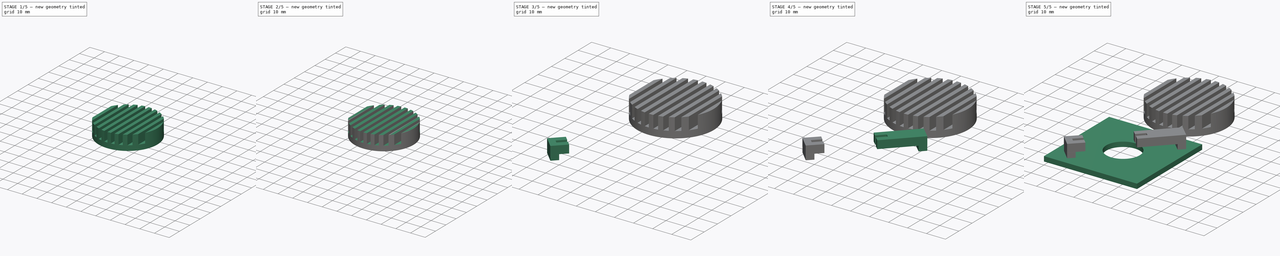
[diagram: build sequence overview — one tinted view per stage of 5, left to right]
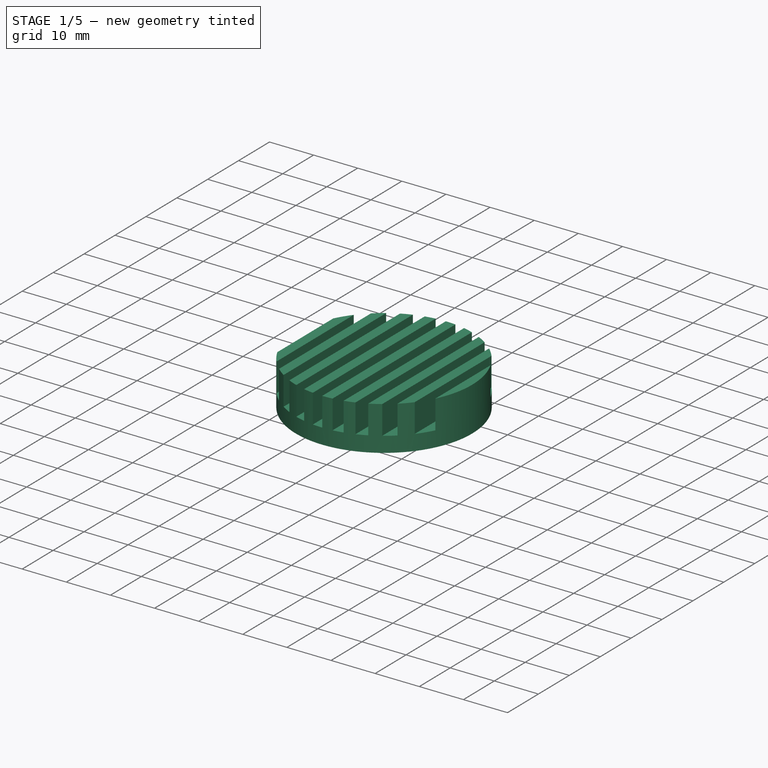
[diagram: stage 1 of 5 — iso view after this stage's code; geometry added in this stage tinted green]
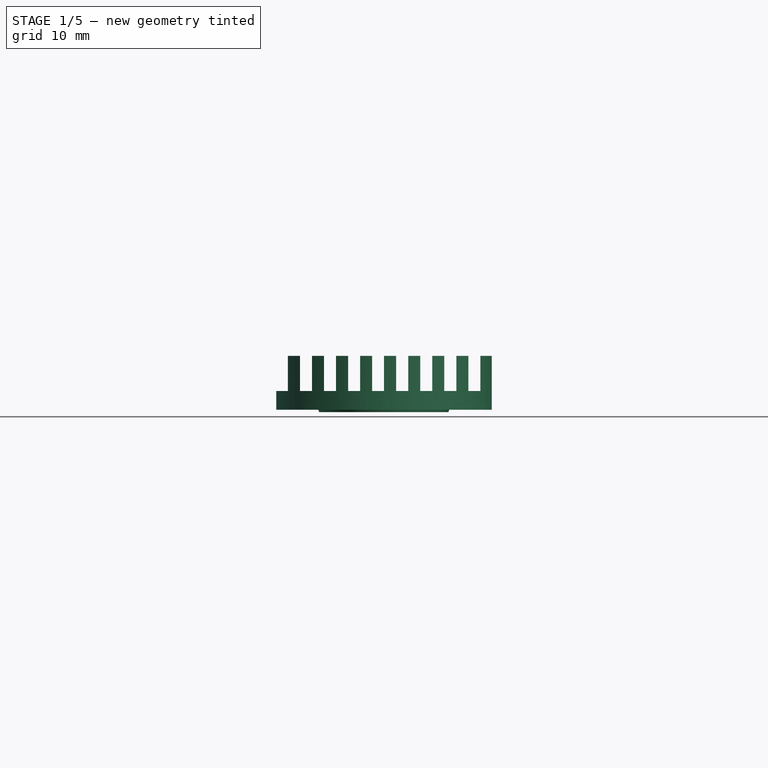
[diagram: stage 1 of 5 — front view after this stage's code; geometry added in this stage tinted green]
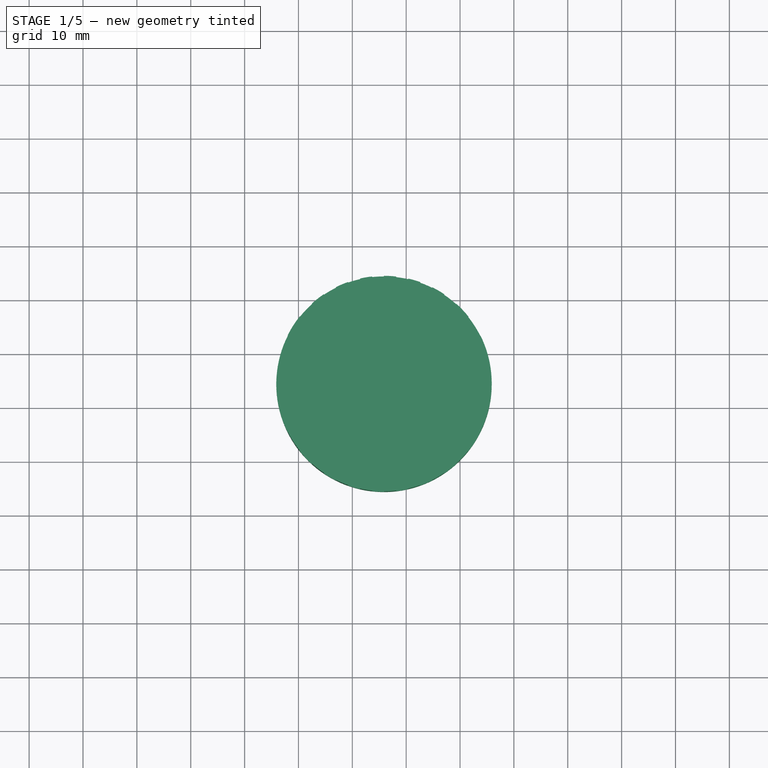
[diagram: stage 1 of 5 — top view after this stage's code; geometry added in this stage tinted green]
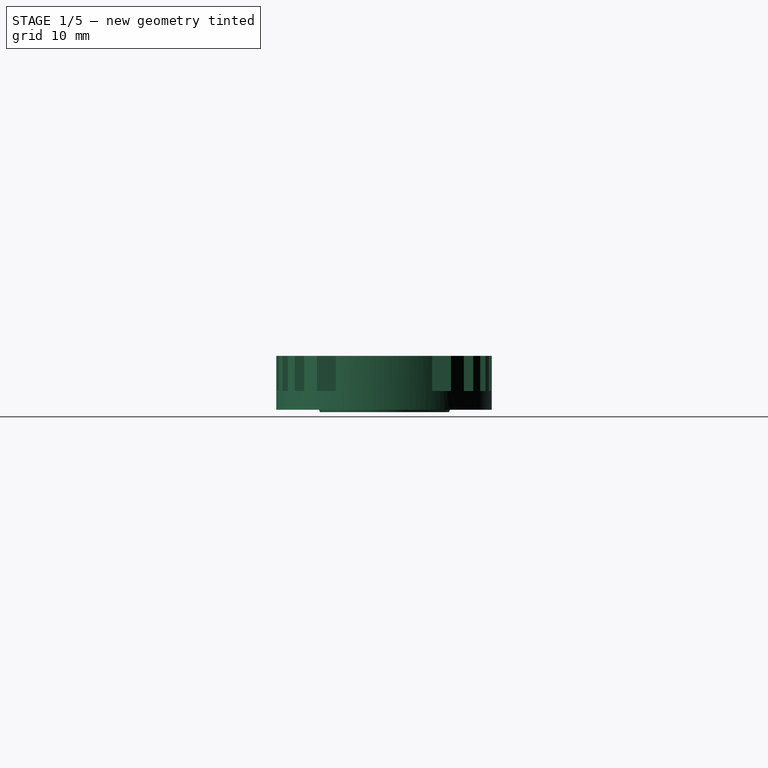
[diagram: stage 1 of 5 — right view after this stage's code; geometry added in this stage tinted green]
FCSTD DOCUMENT  (FreeCAD 0.21R33694 (Git))
Label: new_wall_maze_v4
License: All rights reserved
LicenseURL: https://en.wikipedia.org/wiki/All_rights_reserved
objects: Part::Cut×7, Sketcher::SketchObject×6, Part::Extrusion×6, Part::Box×5, Part::MultiFuse×3, Part::Cylinder×2
note: 29 computed .brp shape members not serialized (recipe doc carries the construction recipe); baked Part::Feature solids carry a one-line shape summary decoded from their .brp

FEATURE [Part::Cylinder] Cylinder001
  Angle = 360
  AttacherType = Attacher::AttachEngine3D
  FirstAngle = 0
  Height = 10
  Placement = pos=(25.8813,-24.4337,1.57777) rot=(0,0,1;0rad)
  Radius = 20
  SecondAngle = 0
FEATURE [Sketcher::SketchObject] Sketch001
  FullyConstrained = false
  MapMode = 2
  Placement = pos=(25.8813,-24.4337,1.57777) rot=(0,0,1;0rad)
  Support = -> [Cylinder001]
  sketch-geometry (36):
    g0: LineSegment StartX=2.26266 StartY=-19.954 StartZ=0 EndX=4.49615 EndY=-19.954 EndZ=0
    g1: LineSegment StartX=4.49615 StartY=-19.954 StartZ=0 EndX=4.49615 EndY=19.9697 EndZ=0
    g2: LineSegment StartX=4.49615 StartY=19.9697 StartZ=0 EndX=2.26266 EndY=19.9697 EndZ=0
    g3: LineSegment StartX=2.26266 StartY=19.9697 StartZ=0 EndX=2.26266 EndY=-19.954 EndZ=0
    g4: LineSegment StartX=6.72964 StartY=-19.954 StartZ=0 EndX=8.96313 EndY=-19.954 EndZ=0
    g5: LineSegment StartX=8.96313 StartY=-19.954 StartZ=0 EndX=8.96313 EndY=19.9697 EndZ=0
    g6: LineSegment StartX=8.96313 StartY=19.9697 StartZ=0 EndX=6.72964 EndY=19.9697 EndZ=0
    g7: LineSegment StartX=6.72964 StartY=19.9697 StartZ=0 EndX=6.72964 EndY=-19.954 EndZ=0
    g8: LineSegment StartX=11.1966 StartY=-19.954 StartZ=0 EndX=13.4301 EndY=-19.954 EndZ=0
    g9: LineSegment StartX=13.4301 StartY=-19.954 StartZ=0 EndX=13.4301 EndY=20.0627 EndZ=0
    g10: LineSegment StartX=13.4301 StartY=20.0627 StartZ=0 EndX=11.1966 EndY=20.0627 EndZ=0
    g11: LineSegment StartX=11.1966 StartY=20.0627 StartZ=0 EndX=11.1966 EndY=-19.954 EndZ=0
    g12: LineSegment StartX=15.6636 StartY=-19.954 StartZ=0 EndX=17.8971 EndY=-19.954 EndZ=0
    g13: LineSegment StartX=17.8971 StartY=-19.954 StartZ=0 EndX=17.8971 EndY=20.0627 EndZ=0
    g14: LineSegment StartX=17.8971 StartY=20.0627 StartZ=0 EndX=15.6636 EndY=20.0627 EndZ=0
    g15: LineSegment StartX=15.6636 StartY=20.0627 StartZ=0 EndX=15.6636 EndY=-19.954 EndZ=0
    g16: LineSegment StartX=0 StartY=-20.6888 StartZ=0 EndX=-2.20433 EndY=-20.6888 EndZ=0
    g17: LineSegment StartX=-2.20433 StartY=-20.6888 StartZ=0 EndX=-2.20433 EndY=20.1558 EndZ=0
    g18: LineSegment StartX=-2.20433 StartY=20.1558 StartZ=0 EndX=0 EndY=20.1558 EndZ=0
    g19: LineSegment StartX=0 StartY=20.1558 StartZ=0 EndX=0 EndY=-20.6888 EndZ=0
    g20: LineSegment StartX=-4.43782 StartY=-19.954 StartZ=0 EndX=-6.67131 EndY=-19.954 EndZ=0
    g21: LineSegment StartX=-6.67131 StartY=-19.954 StartZ=0 EndX=-6.67131 EndY=20.1558 EndZ=0
    g22: LineSegment StartX=-6.67131 StartY=20.1558 StartZ=0 EndX=-4.43782 EndY=20.1558 EndZ=0
    g23: LineSegment StartX=-4.43782 StartY=20.1558 StartZ=0 EndX=-4.43782 EndY=-19.954 EndZ=0
    g24: LineSegment StartX=-8.9048 StartY=-19.954 StartZ=0 EndX=-11.1383 EndY=-19.954 EndZ=0
    g25: LineSegment StartX=-11.1383 StartY=-19.954 StartZ=0 EndX=-11.1383 EndY=20.0627 EndZ=0
    g26: LineSegment StartX=-11.1383 StartY=20.0627 StartZ=0 EndX=-8.9048 EndY=20.0627 EndZ=0
    g27: LineSegment StartX=-8.9048 StartY=20.0627 StartZ=0 EndX=-8.9048 EndY=-19.954 EndZ=0
    g28: LineSegment StartX=-13.3718 StartY=-19.954 StartZ=0 EndX=-15.6053 EndY=-19.954 EndZ=0
    g29: LineSegment StartX=-15.6053 StartY=-19.954 StartZ=0 EndX=-15.6053 EndY=20.0627 EndZ=0
    g30: LineSegment StartX=-15.6053 StartY=20.0627 StartZ=0 EndX=-13.3718 EndY=20.0627 EndZ=0
    g31: LineSegment StartX=-13.3718 StartY=20.0627 StartZ=0 EndX=-13.3718 EndY=-19.954 EndZ=0
    g32: LineSegment StartX=-17.8388 StartY=-19.954 StartZ=0 EndX=-20.0723 EndY=-19.954 EndZ=0
    g33: LineSegment StartX=-20.0723 StartY=-19.954 StartZ=0 EndX=-20.0723 EndY=20.1558 EndZ=0
    g34: LineSegment StartX=-20.0723 StartY=20.1558 StartZ=0 EndX=-17.8388 EndY=20.1558 EndZ=0
    g35: LineSegment StartX=-17.8388 StartY=20.1558 StartZ=0 EndX=-17.8388 EndY=-19.954 EndZ=0
  constraints (73):
    c: PointOnObject(g16,g-2)
    c: Coincident(g0,g1)
    c: Coincident(g1,g2)
    c: Coincident(g2,g3)
    c: Coincident(g3,g0)
    c: Horizontal(g0)
    c: Horizontal(g2)
    c: Vertical(g1)
    c: Vertical(g3)
    c: Coincident(g4,g5)
    c: Coincident(g5,g6)
    c: Coincident(g6,g7)
    c: Coincident(g7,g4)
    c: Horizontal(g4)
    c: Horizontal(g6)
    c: Vertical(g5)
    c: Vertical(g7)
    c: Coincident(g8,g9)
    c: Coincident(g9,g10)
    c: Coincident(g10,g11)
    c: Coincident(g11,g8)
    c: Horizontal(g8)
    c: Horizontal(g10)
    c: Vertical(g9)
    c: Vertical(g11)
    c: Coincident(g12,g13)
    c: Coincident(g13,g14)
    c: Coincident(g14,g15)
    c: Coincident(g15,g12)
    c: Horizontal(g12)
    c: Horizontal(g14)
    c: Vertical(g13)
    c: Vertical(g15)
    c: Coincident(g16,g17)
    c: Coincident(g17,g18)
    c: Coincident(g18,g19)
    c: Coincident(g19,g16)
    c: Horizontal(g16)
    c: Horizontal(g18)
    c: Vertical(g17)
    c: Vertical(g19)
    c: Coincident(g20,g21)
    c: Coincident(g21,g22)
    c: Coincident(g22,g23)
    c: Coincident(g23,g20)
    c: Horizontal(g20)
    c: Horizontal(g22)
    c: Vertical(g21)
    c: Vertical(g23)
    c: Coincident(g24,g25)
    c: Coincident(g25,g26)
    c: Coincident(g26,g27)
    c: Coincident(g27,g24)
    c: Horizontal(g24)
    c: Horizontal(g26)
    c: Vertical(g25)
    c: Vertical(g27)
    c: Coincident(g28,g29)
    c: Coincident(g29,g30)
    c: Coincident(g30,g31)
    c: Coincident(g31,g28)
    c: Horizontal(g28)
    c: Horizontal(g30)
    c: Vertical(g29)
    c: Vertical(g31)
    c: Coincident(g32,g33)
    c: Coincident(g33,g34)
    c: Coincident(g34,g35)
    c: Coincident(g35,g32)
    c: Horizontal(g32)
    c: Horizontal(g34)
    c: Vertical(g33)
    c: Vertical(g35)
FEATURE [Part::Extrusion] Extrude
  Base = -> Sketch001
  Dir = (0,0,1)
  DirMode = 2
  FaceMakerClass = Part::FaceMakerBullseye
  LengthFwd = 6.5
  LengthRev = 0
  Solid = true
  Symmetric = false
FEATURE [Part::Cut] Cut001
  Base = -> Cylinder001
  Placement = pos=(0,50,12) rot=(1,0,0;3.14159rad)
  Tool = -> Extrude
FEATURE [Sketcher::SketchObject] Sketch002
  FullyConstrained = false
  sketch-geometry (1):
    g0: Circle CenterX=25.8418 CenterY=74.5246 CenterZ=0 NormalX=0 NormalY=0 NormalZ=1 AngleXU=0 Radius=12
  constraints (1):
    c: Radius(g0) = 12
FEATURE [Part::Extrusion] Extrude001
  Base = -> Sketch002
  Dir = (0,0,1)
  DirMode = 2
  FaceMakerClass = Part::FaceMakerBullseye
  LengthFwd = 2
  LengthRev = 0
  Solid = true
  Symmetric = false
  TaperAngle = 19
FEATURE [Sketcher::SketchObject] Sketch
  FullyConstrained = false
  sketch-geometry (1):
    g0: Circle CenterX=25.5936 CenterY=74.5909 CenterZ=0 NormalX=0 NormalY=0 NormalZ=1 AngleXU=0 Radius=2.50188
FEATURE [Part::Extrusion] Extrude004
  Base = -> Sketch
  Dir = (0,0,1)
  DirMode = 2
  FaceMakerClass = Part::FaceMakerBullseye
  LengthFwd = 0.5
  LengthRev = 0
  Placement = pos=(0,0,1.5) rot=(0,0,1;0rad)
  Solid = true
  Symmetric = false
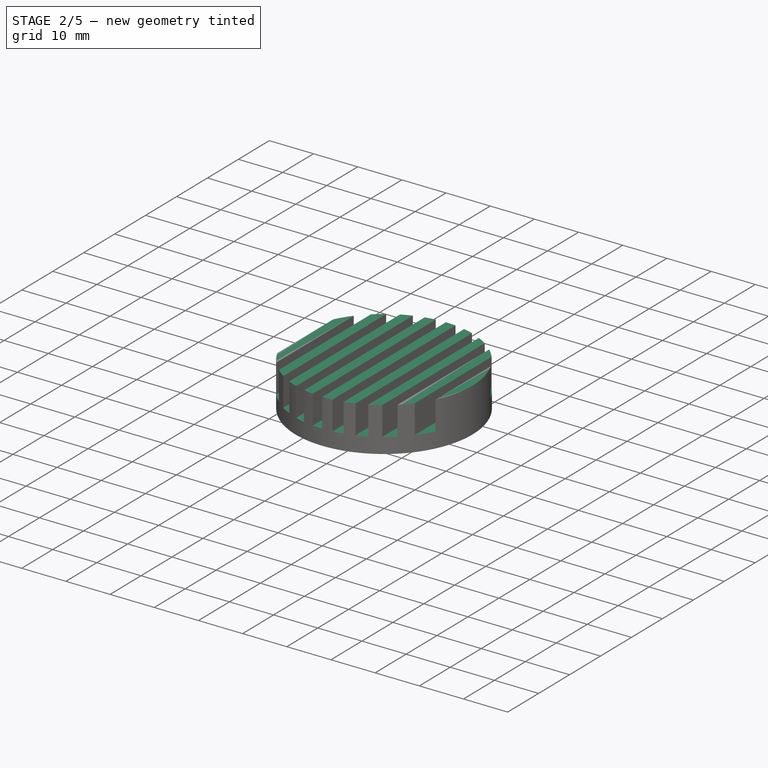
[diagram: stage 2 of 5 — iso view after this stage's code; geometry added in this stage tinted green]
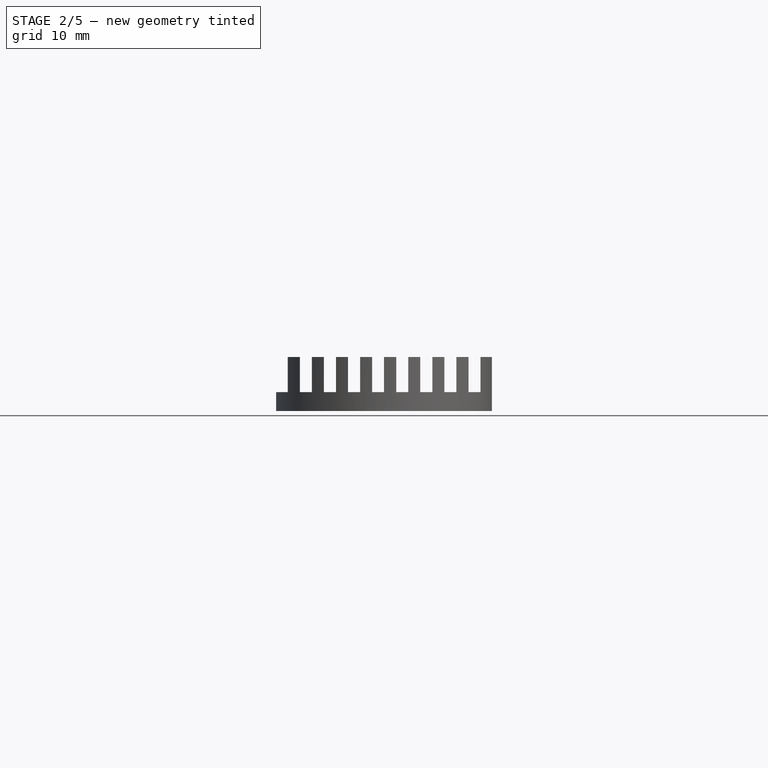
[diagram: stage 2 of 5 — front view after this stage's code; geometry added in this stage tinted green]
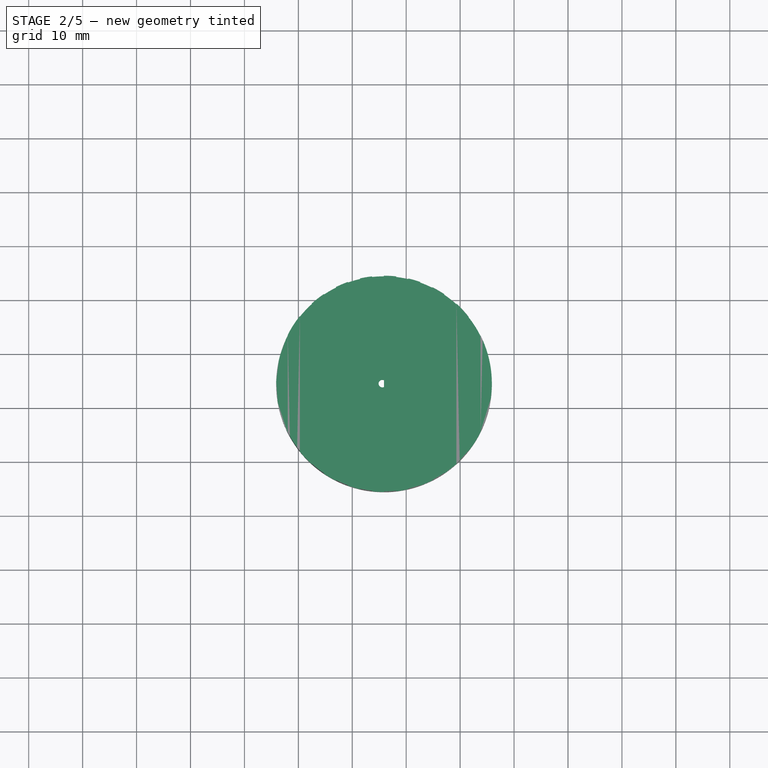
[diagram: stage 2 of 5 — top view after this stage's code; geometry added in this stage tinted green]
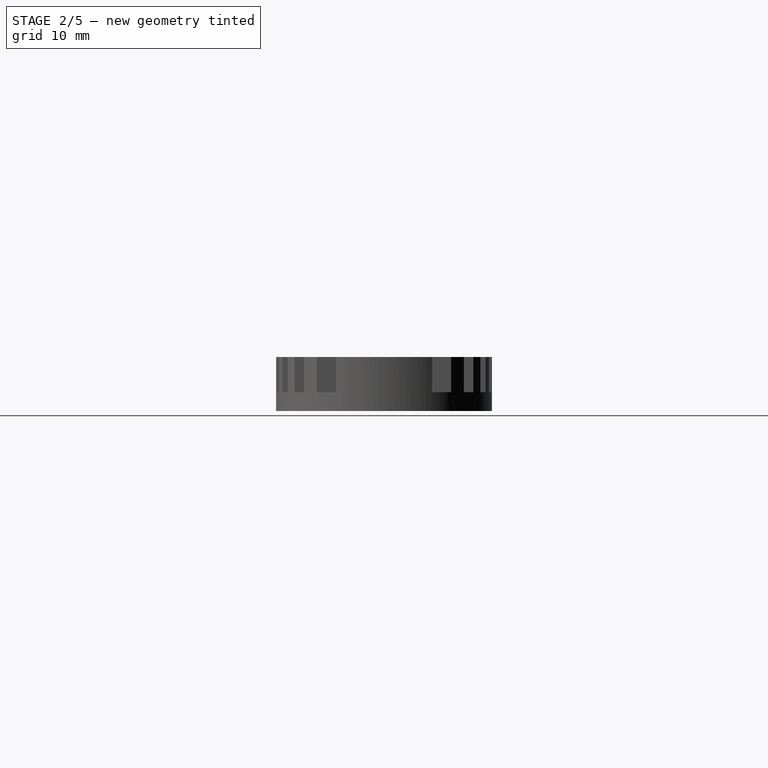
[diagram: stage 2 of 5 — right view after this stage's code; geometry added in this stage tinted green]
FEATURE [Part::Cut] Cut002
  Base = -> Cut001
  Placement = pos=(0,0,-0.5) rot=(0,0,1;0rad)
  Tool = -> Extrude001
FEATURE [Sketcher::SketchObject] Sketch007
  FullyConstrained = false
  sketch-geometry (1):
    g0: Circle CenterX=25.575 CenterY=74.5361 CenterZ=0 NormalX=0 NormalY=0 NormalZ=1 AngleXU=0 Radius=0.7
  constraints (1):
    c: Radius(g0) = 0.7
FEATURE [Part::Extrusion] Extrude005
  Base = -> Sketch007
  Dir = (0,0,1)
  DirMode = 2
  FaceMakerClass = Part::FaceMakerBullseye
  LengthFwd = 3.6
  LengthRev = 0
  Placement = pos=(0,0,2) rot=(0,0,1;0rad)
  Solid = true
  Symmetric = false
FEATURE [Part::Cut] Cut005
  Base = -> Cut002
  Tool = -> Extrude004
FEATURE [Part::Cut] Cut006
  Base = -> Cut005
  Tool = -> Extrude005
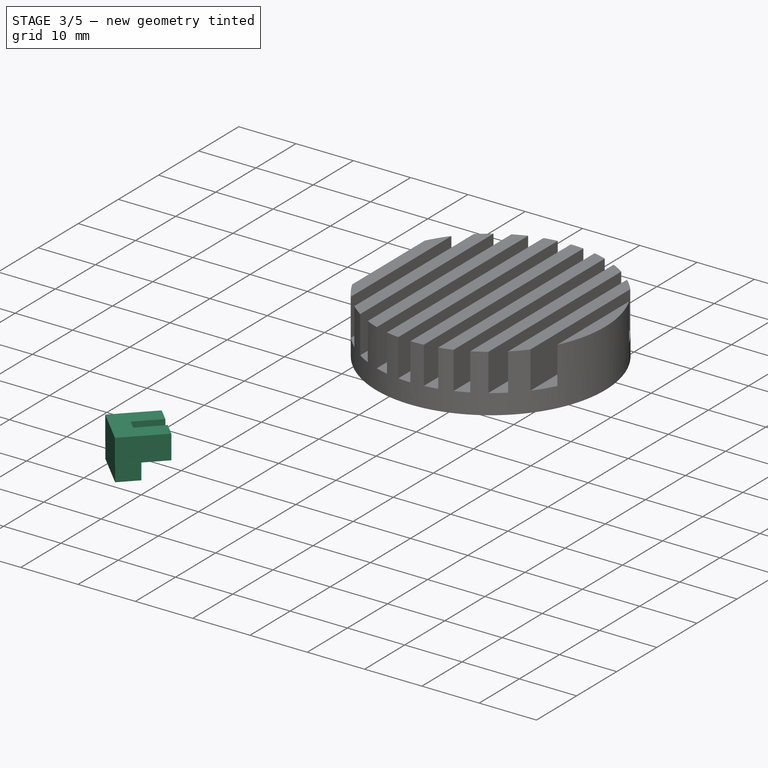
[diagram: stage 3 of 5 — iso view after this stage's code; geometry added in this stage tinted green]
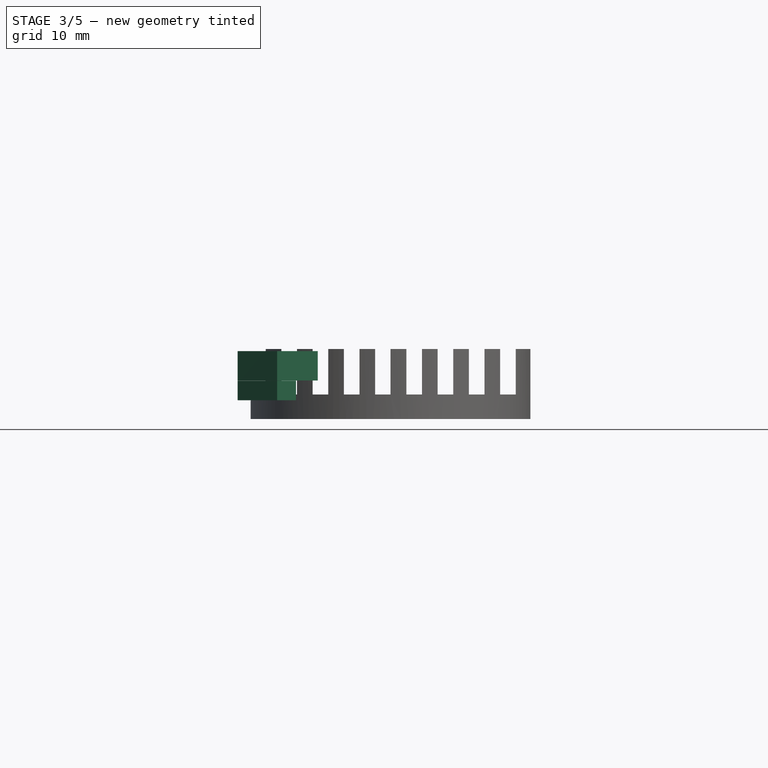
[diagram: stage 3 of 5 — front view after this stage's code; geometry added in this stage tinted green]
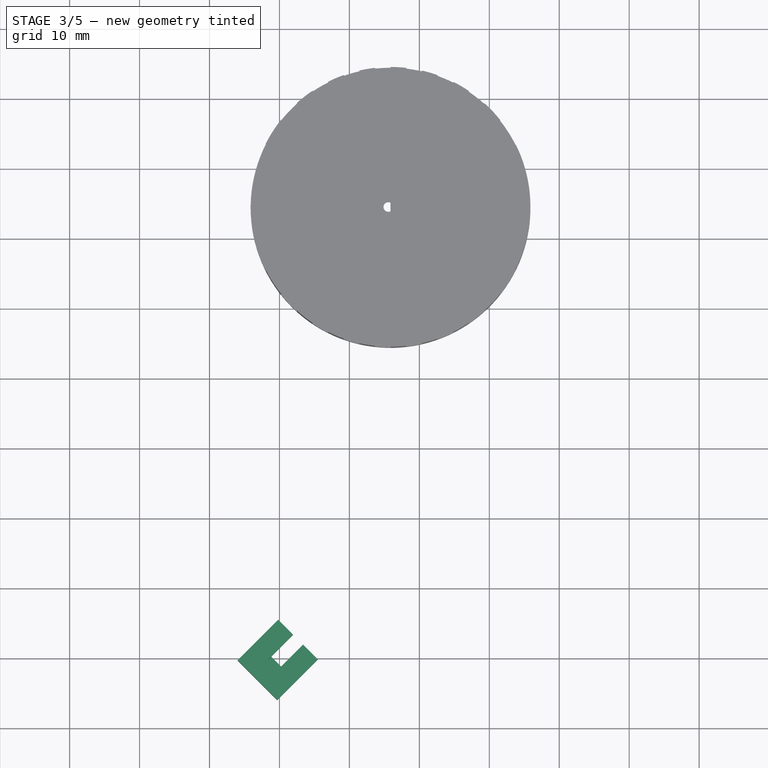
[diagram: stage 3 of 5 — top view after this stage's code; geometry added in this stage tinted green]
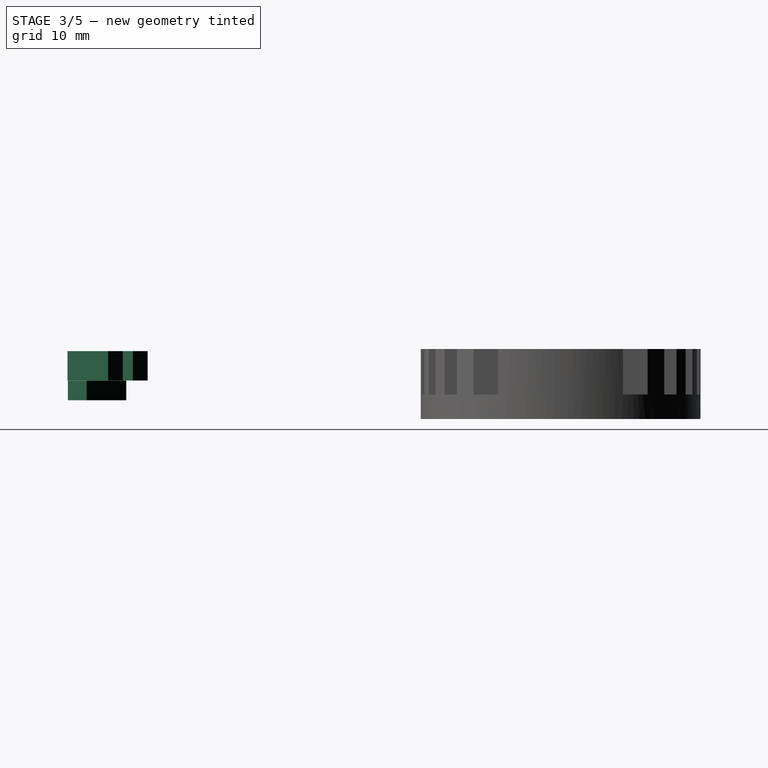
[diagram: stage 3 of 5 — right view after this stage's code; geometry added in this stage tinted green]
FEATURE [Part::Box] Box001  label="Cube001"
  AttacherType = Attacher::AttachEngine3D
  Height = 2.8
  Length = 8
  Placement = pos=(12.36,6.67,2.6) rot=(0,0,1;2.35619rad)
  Width = 3.8
FEATURE [Part::Box] Box003  label="Cube003"
  AttacherType = Attacher::AttachEngine3D
  Height = 4.2
  Length = 8
  Placement = pos=(15.55,9.66,8.79) rot=(0,0,1;2.35619rad)
  Width = 8.2
FEATURE [Sketcher::SketchObject] Sketch006
  FullyConstrained = false
  MapMode = 5
  Placement = pos=(15.55,9.66,12.99) rot=(0,0,1;2.35619rad)
  Support = -> [Box003]
  sketch-geometry (4):
    g0: LineSegment StartX=2.96748 StartY=0 StartZ=0 EndX=5.00876 EndY=0 EndZ=0
    g1: LineSegment StartX=5.00876 StartY=0 StartZ=0 EndX=5.00876 EndY=5.04329 EndZ=0
    g2: LineSegment StartX=5.00876 StartY=5.04329 StartZ=0 EndX=2.96748 EndY=5.04329 EndZ=0
    g3: LineSegment StartX=2.96748 StartY=5.04329 StartZ=0 EndX=2.96748 EndY=0 EndZ=0
  constraints (9):
    c: Coincident(g0,g1)
    c: Coincident(g1,g2)
    c: Coincident(g2,g3)
    c: Coincident(g3,g0)
    c: Horizontal(g0)
    c: Horizontal(g2)
    c: Vertical(g1)
    c: Vertical(g3)
    c: PointOnObject(g0,g-1)
FEATURE [Part::Extrusion] Extrude003
  Base = -> Sketch006
  Dir = (0,0,1)
  DirMode = 2
  FaceMakerClass = Part::FaceMakerBullseye
  LengthFwd = 4.5
  LengthRev = 0
  Placement = pos=(0,0,-4.5) rot=(0,0,1;0rad)
  Solid = true
  Symmetric = false
FEATURE [Part::Cut] Cut004
  Base = -> Box003
  Placement = pos=(-0.0844901,0.0769181,-3.36841) rot=(0,0,1;0rad)
  Tool = -> Extrude003
FEATURE [Part::MultiFuse] Fusion001
  Shapes = -> [Box001,Cut004]
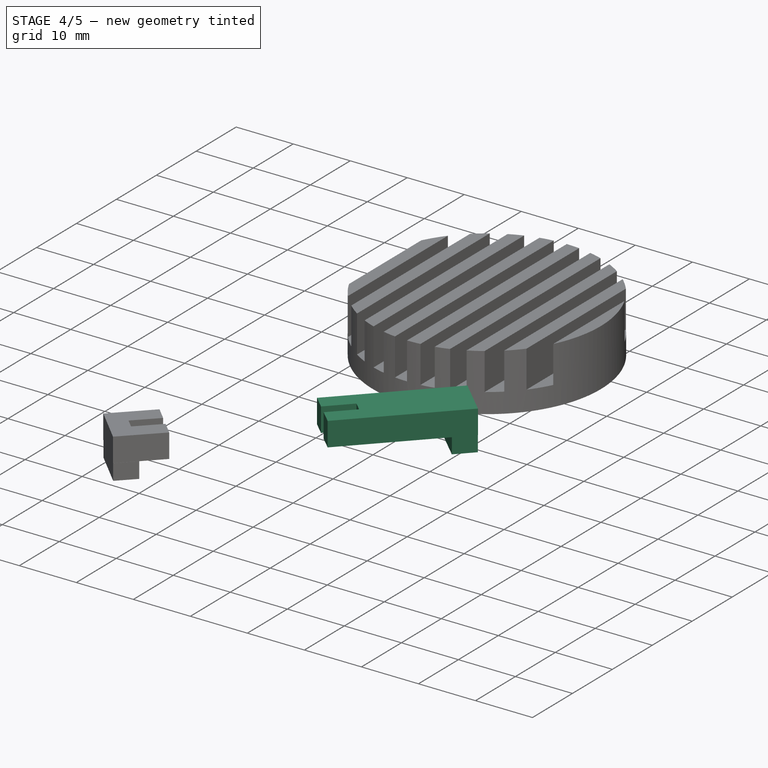
[diagram: stage 4 of 5 — iso view after this stage's code; geometry added in this stage tinted green]
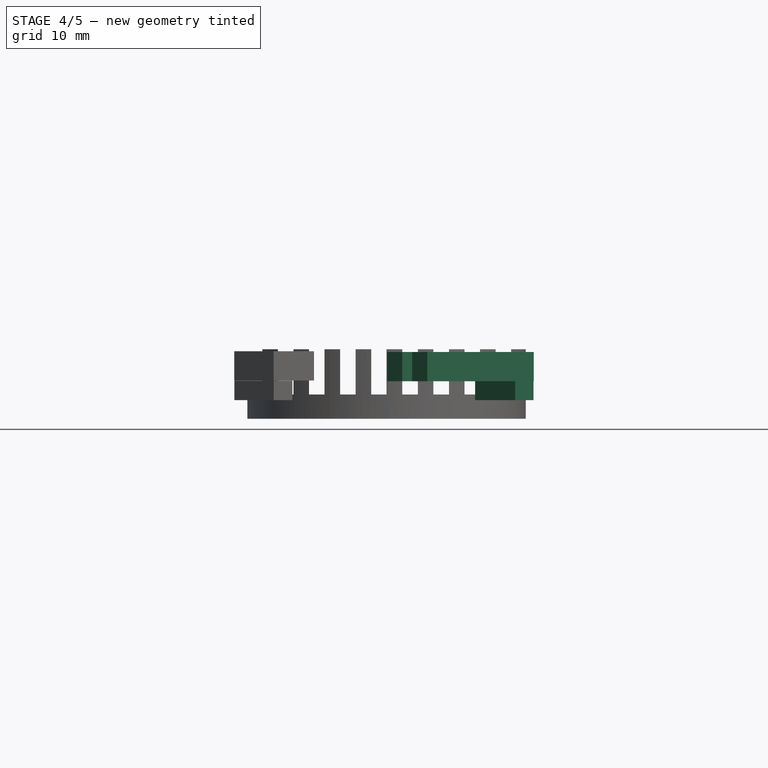
[diagram: stage 4 of 5 — front view after this stage's code; geometry added in this stage tinted green]
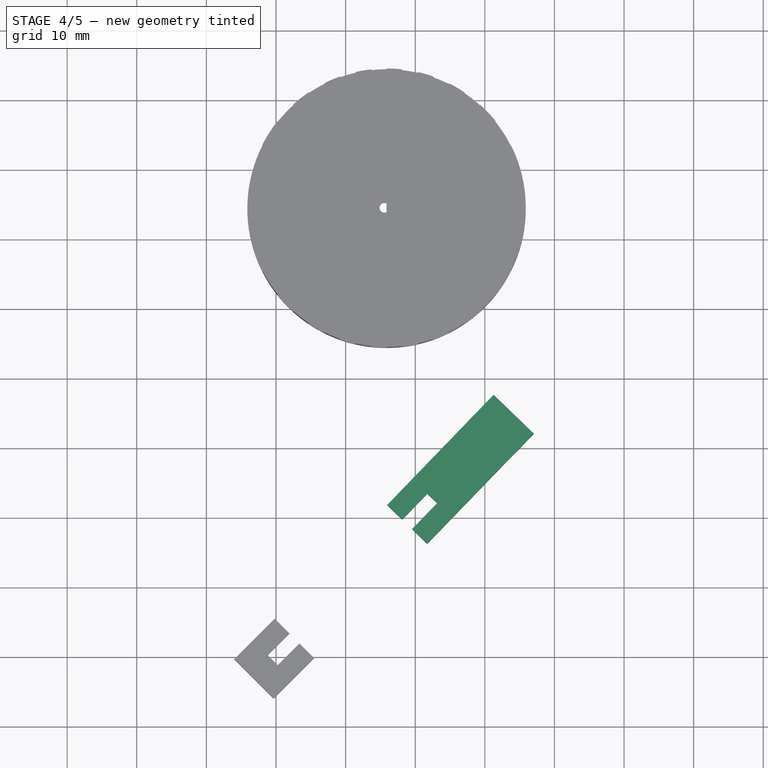
[diagram: stage 4 of 5 — top view after this stage's code; geometry added in this stage tinted green]
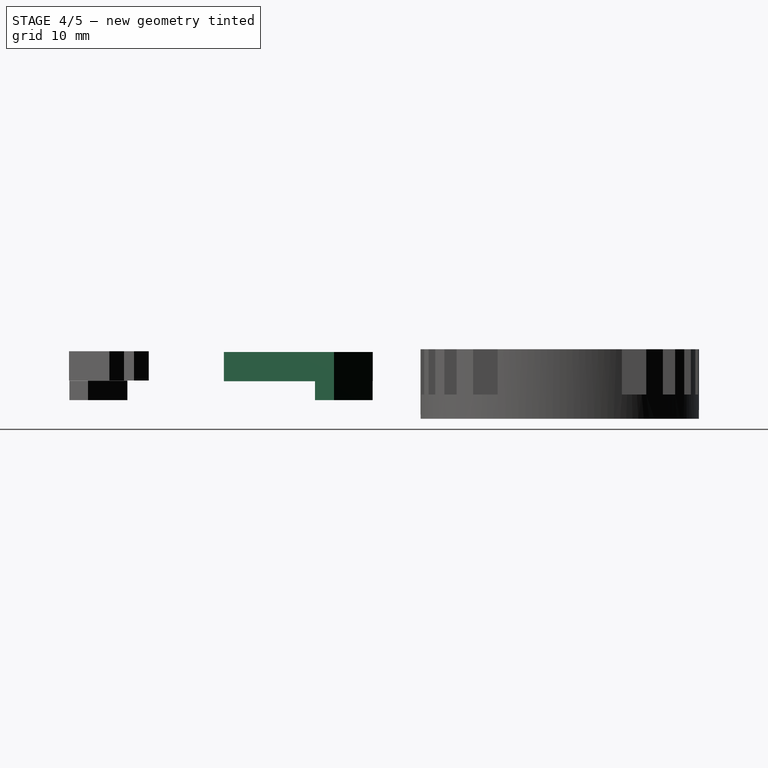
[diagram: stage 4 of 5 — right view after this stage's code; geometry added in this stage tinted green]
FEATURE [Part::Box] Box002  label="Cube002"
  AttacherType = Attacher::AttachEngine3D
  Height = 2.8
  Length = 8
  Placement = pos=(47,42,2.6) rot=(0,0,1;2.37365rad)
  Width = 3.8
FEATURE [Part::Box] Box004  label="Cube004"
  AttacherType = Attacher::AttachEngine3D
  Height = 4.2
  Length = 8
  Placement = pos=(47.02,42.01,8.32) rot=(0,0,1;2.37365rad)
  Width = 22
FEATURE [Sketcher::SketchObject] Sketch005
  FullyConstrained = false
  MapMode = 5
  Placement = pos=(47.02,42.01,12.52) rot=(0,0,1;2.37365rad)
  Support = -> [Box004]
  sketch-geometry (4):
    g0: LineSegment StartX=3.02133 StartY=22.0778 StartZ=0 EndX=5.0054 EndY=22.0778 EndZ=0
    g1: LineSegment StartX=5.0054 StartY=22.0778 StartZ=0 EndX=5.0054 EndY=16.8107 EndZ=0
    g2: LineSegment StartX=5.0054 StartY=16.8107 StartZ=0 EndX=3.02133 EndY=16.8107 EndZ=0
    g3: LineSegment StartX=3.02133 StartY=16.8107 StartZ=0 EndX=3.02133 EndY=22.0778 EndZ=0
  constraints (8):
    c: Coincident(g0,g1)
    c: Coincident(g1,g2)
    c: Coincident(g2,g3)
    c: Coincident(g3,g0)
    c: Horizontal(g0)
    c: Horizontal(g2)
    c: Vertical(g1)
    c: Vertical(g3)
FEATURE [Part::Extrusion] Extrude002
  Base = -> Sketch005
  Dir = (0,0,1)
  DirMode = 2
  FaceMakerClass = Part::FaceMakerBullseye
  LengthFwd = 4.5
  LengthRev = 0
  Placement = pos=(0,0,-4.5) rot=(0,0,1;0rad)
  Solid = true
  Symmetric = false
FEATURE [Part::Cut] Cut003
  Base = -> Box004
  Placement = pos=(0,0,-3) rot=(0,0,1;0rad)
  Tool = -> Extrude002
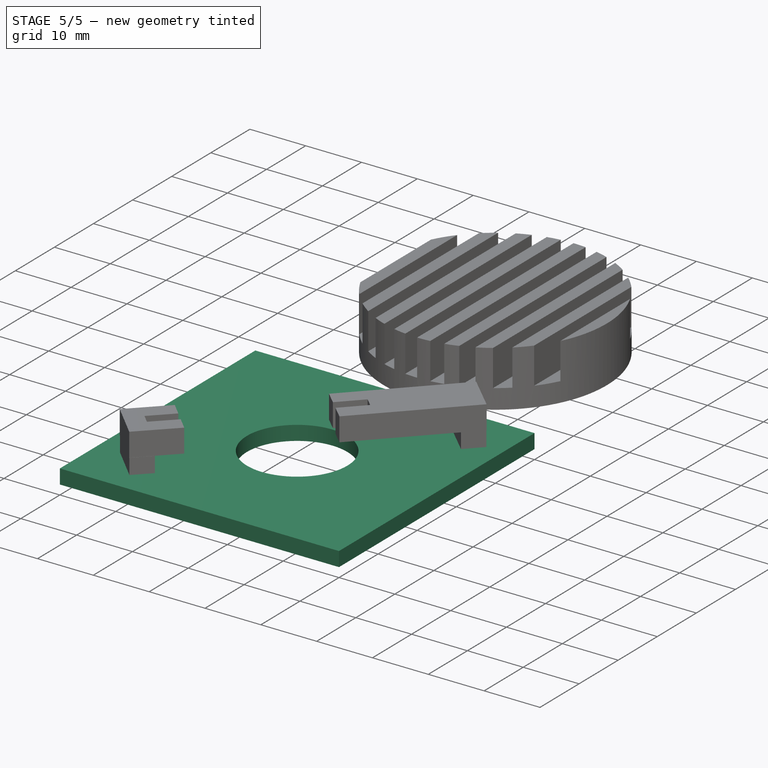
[diagram: stage 5 of 5 — iso view after this stage's code; geometry added in this stage tinted green]
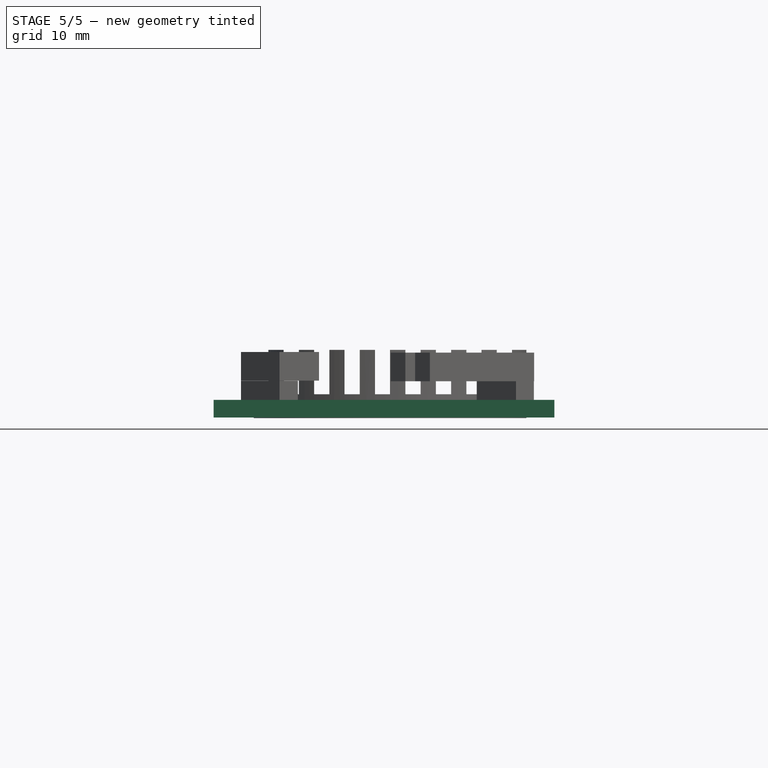
[diagram: stage 5 of 5 — front view after this stage's code; geometry added in this stage tinted green]
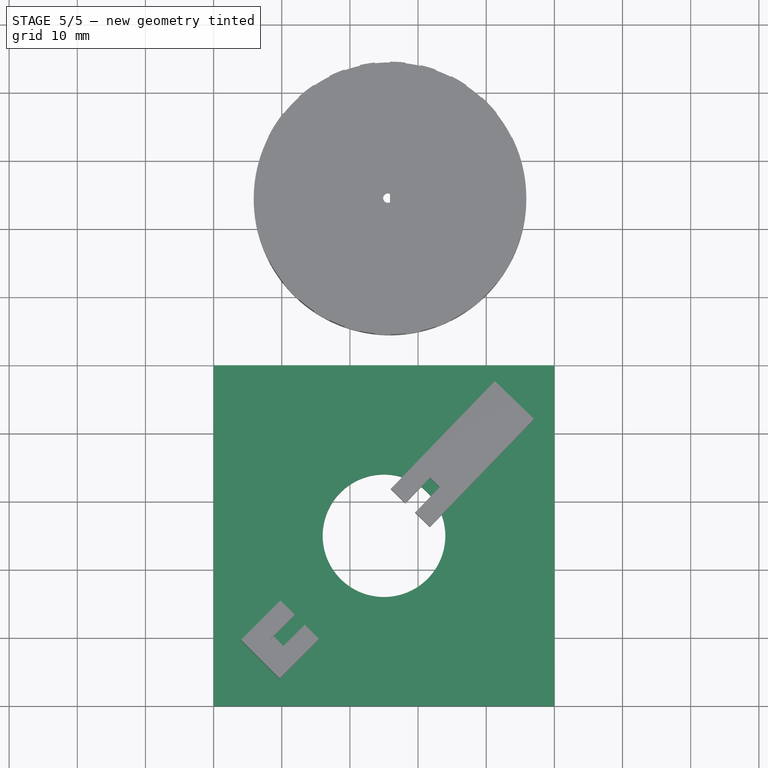
[diagram: stage 5 of 5 — top view after this stage's code; geometry added in this stage tinted green]
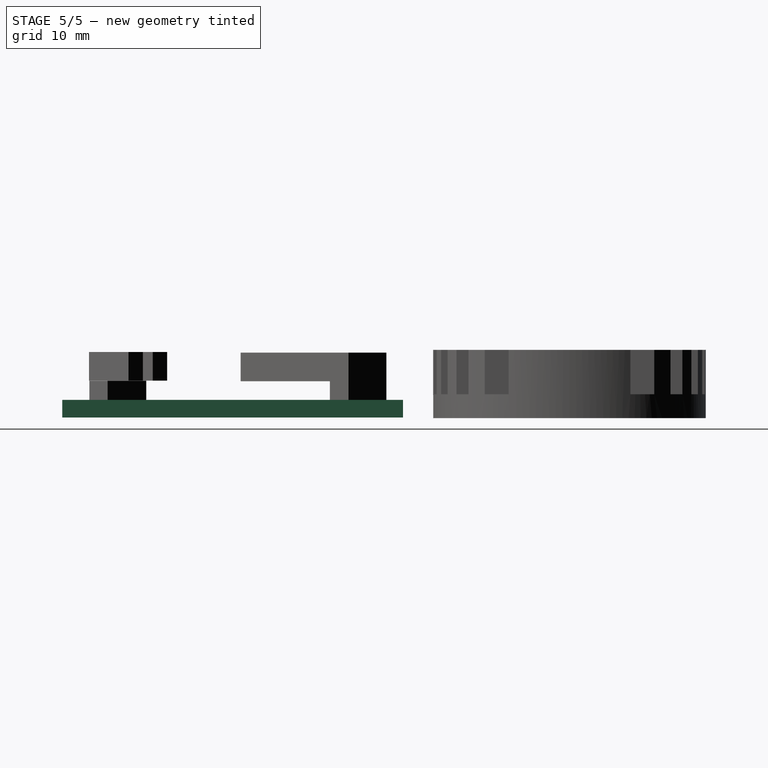
[diagram: stage 5 of 5 — right view after this stage's code; geometry added in this stage tinted green]
FEATURE [Part::Box] Box  label="Cube"
  AttacherType = Attacher::AttachEngine3D
  Height = 2.6
  Length = 50
  Width = 50
FEATURE [Part::Cylinder] Cylinder
  Angle = 360
  AttacherType = Attacher::AttachEngine3D
  FirstAngle = 0
  Height = 2.6
  Placement = pos=(25,25,0) rot=(0,0,1;0rad)
  Radius = 9
  SecondAngle = 0
FEATURE [Part::Cut] Cut
  Base = -> Box
  Tool = -> Cylinder
FEATURE [Part::MultiFuse] Fusion
  Shapes = -> [Box002,Cut003]
FEATURE [Part::MultiFuse] Fusion002
  Shapes = -> [Cut,Fusion,Fusion001]
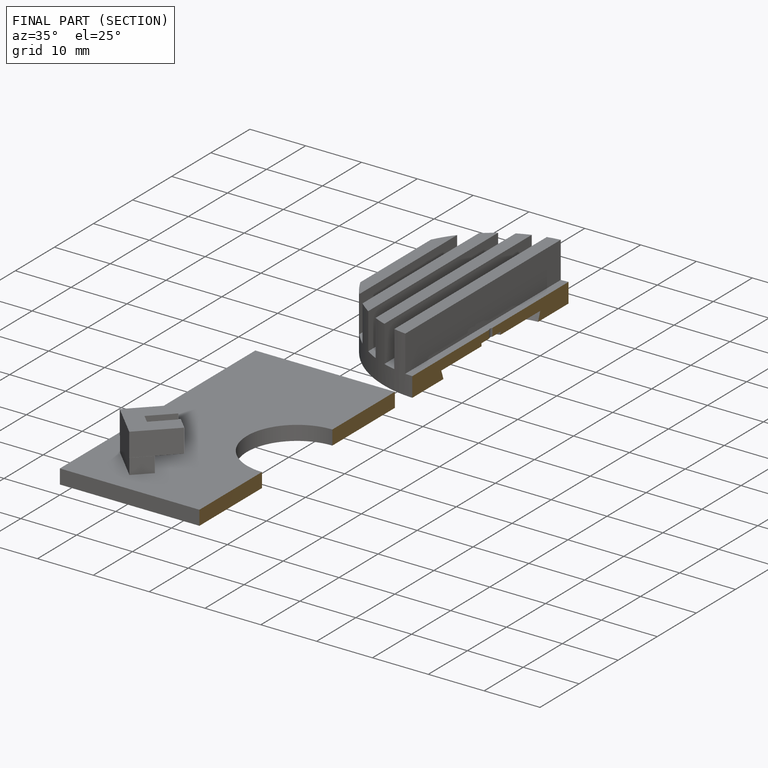
[diagram: finished part — half-section view (interior)]
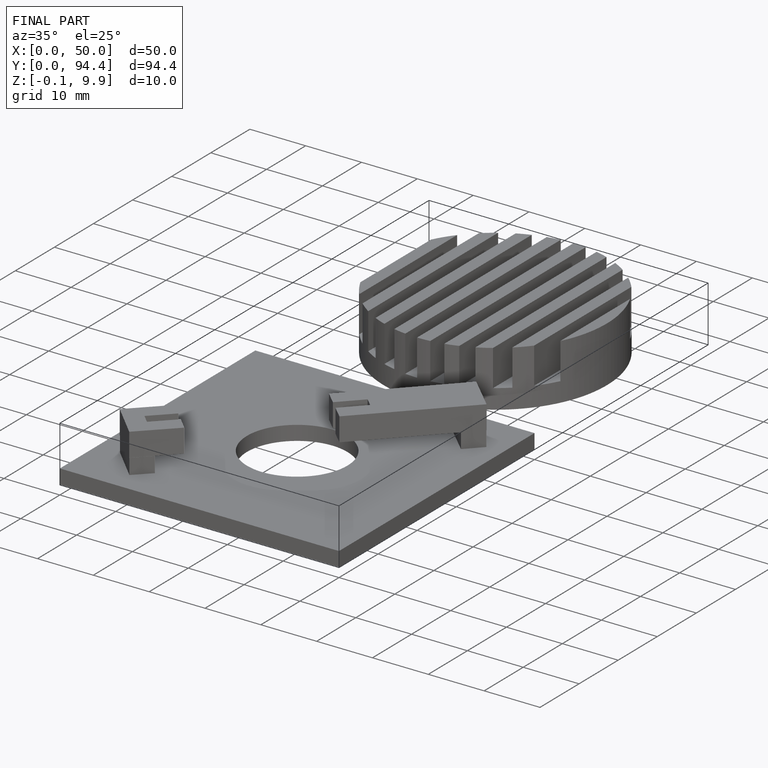
[diagram: finished part — iso view with bounding-box wireframe]
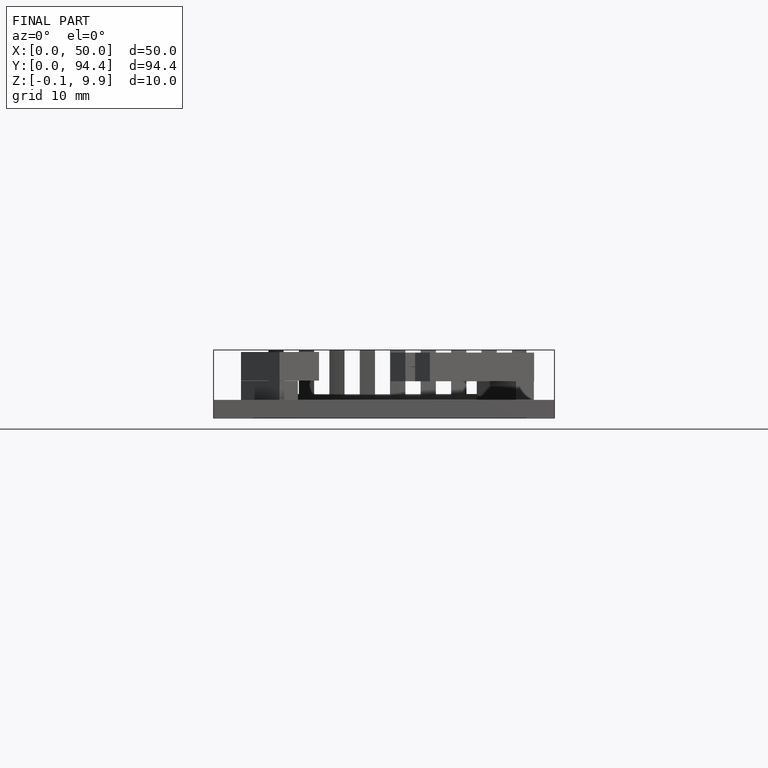
[diagram: finished part — front view with bounding-box wireframe]
